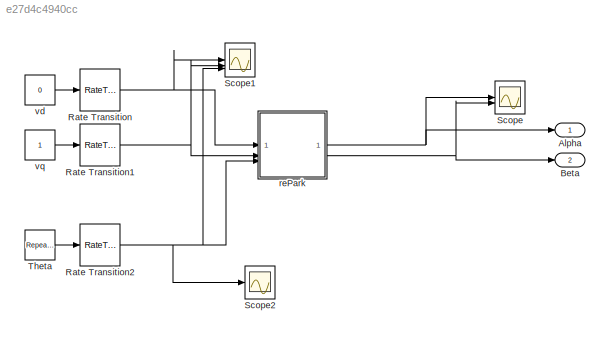
MODEL slx_e27d4c4940cc
KIND model
CONFIG AbsTol = auto
CONFIG EnableMultiTasking = off
CONFIG FixedStep = auto
CONFIG MaxStep = auto
CONFIG MinStep = auto
CONFIG RelTol = 1e-3
CONFIG SampleTimeConstraint = Unconstrained
CONFIG SolverName = VariableStepAuto
CONFIG StartTime = 0.0
CONFIG StopTime = 1
BLOCK [Outport] Alpha
BLOCK [Outport] Beta
  Port = 2
BLOCK [RateTransition] Rate Transition
BLOCK [RateTransition] Rate Transition1
BLOCK [RateTransition] Rate Transition2
BLOCK [Scope] Scope
  Floating = off
  NumInputPorts = 2
  ScopeSpecificationString = Simulink.scopes.TimeScopeBlockCfg('CurrentConfiguration', extmgr.ConfigurationSet(extmgr.Configuration('Core','General UI',true),extmgr.Configuration('Core','Source UI',true),extmgr.Configuration('Sources','WiredSimulink',true,'SampleTime','1e-6'),extmgr.Configuration('Visuals','Time Domain',true,'SerializedDisplays',{struct('MinYLimReal','-1.25','MaxYLimReal','1.25','YLabelReal','','MinYLimMag','...<+1444ch>
BLOCK [Scope] Scope1
  Floating = off
  NumInputPorts = 3
  ScopeSpecificationString = Simulink.scopes.TimeScopeBlockCfg('CurrentConfiguration', extmgr.ConfigurationSet(extmgr.Configuration('Core','General UI',true),extmgr.Configuration('Core','Source UI',true),extmgr.Configuration('Sources','WiredSimulink',true,'DataLoggingVariableName','ScopeData1'),extmgr.Configuration('Visuals','Time Domain',true,'SerializedDisplays',{struct('MinYLimReal','-44.99955','MaxYLimReal','404.99595','Y...<+1540ch>
BLOCK [Scope] Scope2
  Floating = off
  NumInputPorts = 2
  ScopeSpecificationString = Simulink.scopes.TimeScopeBlockCfg('CurrentConfiguration', extmgr.ConfigurationSet(extmgr.Configuration('Core','General UI',true),extmgr.Configuration('Core','Source UI',true),extmgr.Configuration('Sources','WiredSimulink',true,'DataLoggingVariableName','ScopeData2','SampleTime','1e-6'),extmgr.Configuration('Visuals','Time Domain',true,'SerializedDisplays',{struct('MinYLimReal','-44.99955','MaxYLim...<+1464ch>
BLOCK [Reference] Theta  REF=simulink/Sources/Repeating
Sequence
  SourceBlock = simulink/Sources/Repeating\nSequence
  SourceType = Repeating table
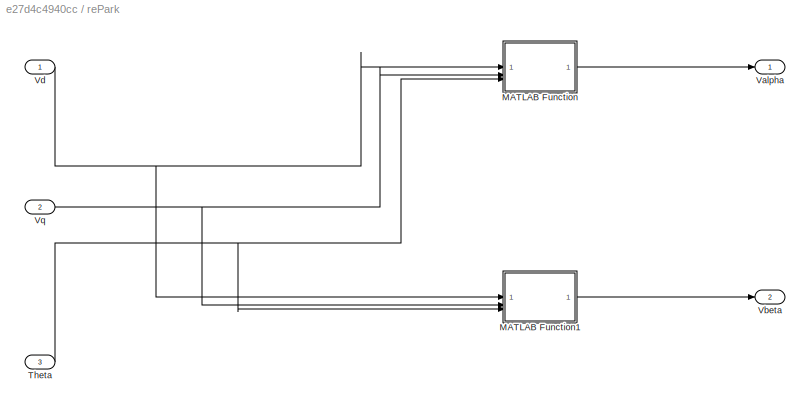
BLOCK [SubSystem] rePark
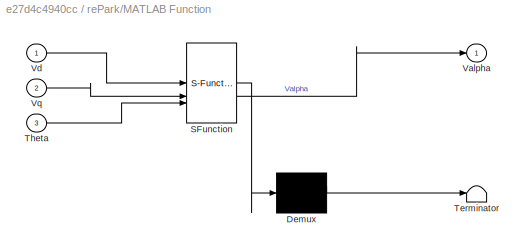
BLOCK [SubSystem] rePark/MATLAB Function
  ErrorFcn = Stateflow.Translate.translate
  LibrarySourceBlock = simulink/User-Defined\nFunctions/MATLAB Function
  PermitHierarchicalResolution = ExplicitOnly
  SFBlockType = MATLAB Function
  TreatAsAtomicUnit = on
BLOCK [Demux] rePark/MATLAB Function/ Demux 
  Outputs = 1
BLOCK [S-Function] rePark/MATLAB Function/ SFunction 
  EnableBusSupport = on
  FunctionName = sf_sfun
  PortCounts = [3 2]
  SFcnIsStateOwnerBlock = off
  SFunctionDeploymentMode = off
  Tag = Stateflow S-Function 3
BLOCK [Terminator] rePark/MATLAB Function/ Terminator 
BLOCK [Inport] rePark/MATLAB Function/Theta
  Port = 3
BLOCK [Outport] rePark/MATLAB Function/Valpha
BLOCK [Inport] rePark/MATLAB Function/Vd
BLOCK [Inport] rePark/MATLAB Function/Vq
  Port = 2
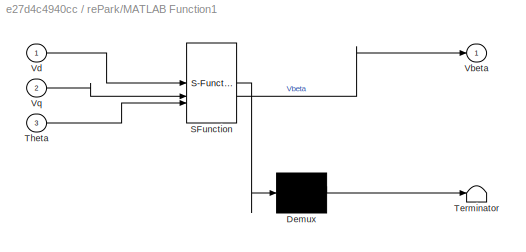
BLOCK [SubSystem] rePark/MATLAB Function1
  ErrorFcn = Stateflow.Translate.translate
  LibrarySourceBlock = simulink/User-Defined\nFunctions/MATLAB Function
  PermitHierarchicalResolution = ExplicitOnly
  SFBlockType = MATLAB Function
  TreatAsAtomicUnit = on
BLOCK [Demux] rePark/MATLAB Function1/ Demux 
  Outputs = 1
BLOCK [S-Function] rePark/MATLAB Function1/ SFunction 
  EnableBusSupport = on
  FunctionName = sf_sfun
  PortCounts = [3 2]
  SFcnIsStateOwnerBlock = off
  SFunctionDeploymentMode = off
  Tag = Stateflow S-Function 4
BLOCK [Terminator] rePark/MATLAB Function1/ Terminator 
BLOCK [Inport] rePark/MATLAB Function1/Theta
  Port = 3
BLOCK [Outport] rePark/MATLAB Function1/Vbeta
BLOCK [Inport] rePark/MATLAB Function1/Vd
BLOCK [Inport] rePark/MATLAB Function1/Vq
  Port = 2
BLOCK [Inport] rePark/Theta
  Port = 3
BLOCK [Outport] rePark/Valpha
BLOCK [Outport] rePark/Vbeta
  Port = 2
BLOCK [Inport] rePark/Vd
BLOCK [Inport] rePark/Vq
  Port = 2
BLOCK [Constant] vd
  Value = 0
BLOCK [Constant] vq
NET Rate Transition1:1 -> Scope1:2, rePark:2
NET Rate Transition2:1 -> Scope1:3, Scope2:1, rePark:3
NET Rate Transition:1 -> Scope1:1, rePark:1
LINE Theta:1 -> Rate Transition2:1
LINE rePark/MATLAB Function1:1 -> rePark/Vbeta:1
LINE rePark/MATLAB Function:1 -> rePark/Valpha:1
NET rePark/Theta:1 -> rePark/MATLAB Function1:3, rePark/MATLAB Function:3
NET rePark/Vd:1 -> rePark/MATLAB Function1:1, rePark/MATLAB Function:1
NET rePark/Vq:1 -> rePark/MATLAB Function1:2, rePark/MATLAB Function:2
NET rePark:1 -> Alpha:1, Scope:1
NET rePark:2 -> Beta:1, Scope:2
LINE vd:1 -> Rate Transition:1
LINE vq:1 -> Rate Transition1:1
note: NET lines group one-source signal fan-out (src -> all destinations, sorted); 1:1 wires keep LINE
CHART rePark/MATLAB Function1 states=1 transitions=1
  STATE_LABEL 'eML_blk_kernel()'
  STATE_LABEL 'SCRIPT:\nfunction Vbeta = fcn(Vd, Vq, Theta)\n\nVbeta = Vq * cosd(Theta) + Vd * sind(Theta);\n'
CHART rePark/MATLAB Function states=1 transitions=1
  STATE_LABEL 'eML_blk_kernel()'
  STATE_LABEL 'SCRIPT:\nfunction Valpha = fcn(Vd, Vq, Theta)\n\nValpha = -Vq * sind(Theta) + Vd * cosd(Theta);\n'
CHART  states=0 transitions=0
CHART  states=0 transitions=0
